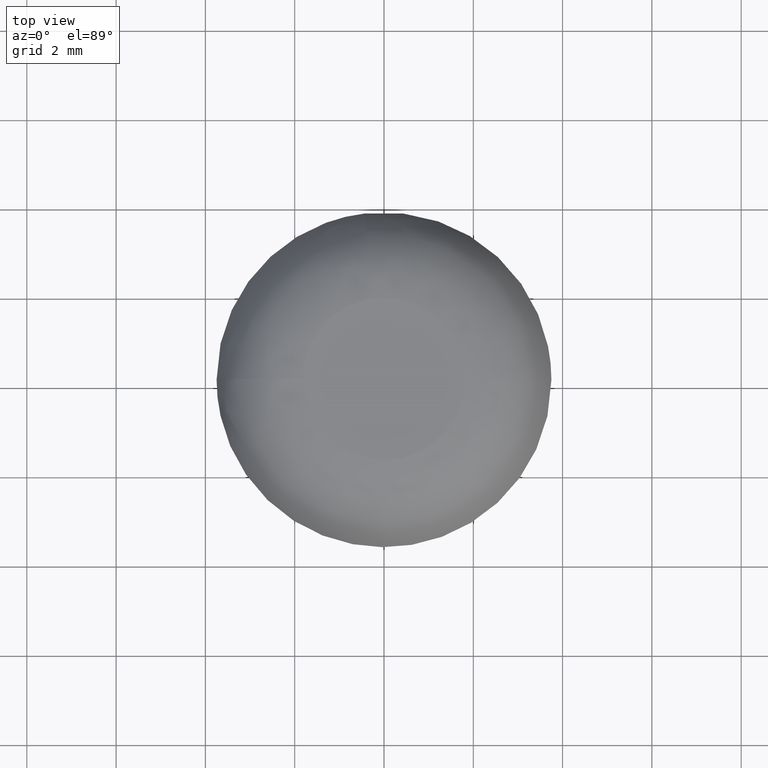
[diagram: clean part render]
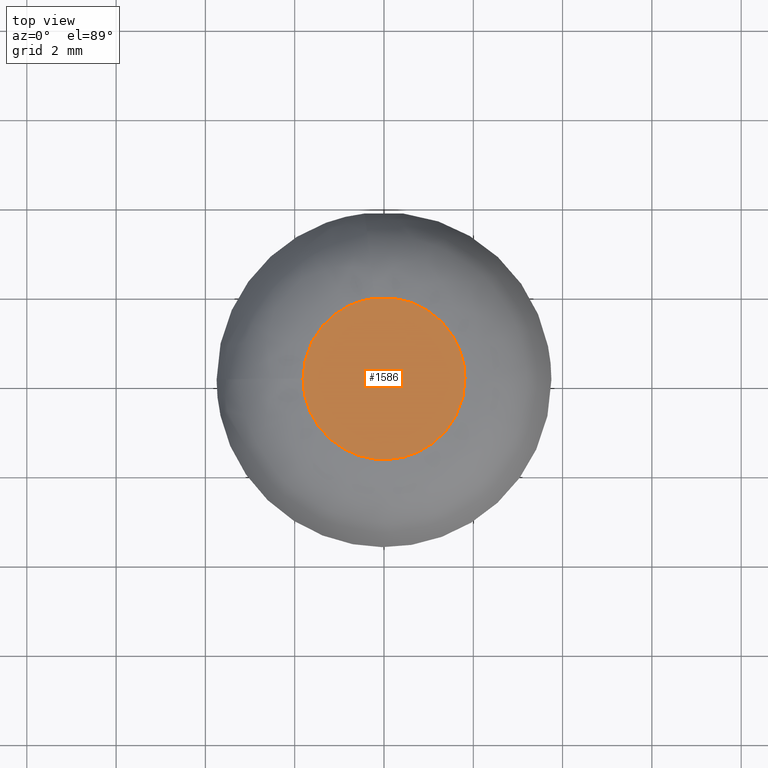
[diagram: same view with one face highlighted and labeled with its STEP entity id]
A machine part, top view. The second image highlights one B-rep face of the part: STEP entity #1586.
In plain terms, the highlighted face is a freeform B-spline surface patch.
Its self-contained STEP definition (entity closure, byte-faithful):
#266=CARTESIAN_POINT('',(-0.209395303627557,1.801378603412120,1.500000000000050));
#267=VERTEX_POINT('',#266);
#268=CARTESIAN_POINT('',(1.813508000000000,0.0,1.500000000000100));
#269=VERTEX_POINT('',#268);
#270=CARTESIAN_POINT('',(-0.209395303627557,1.801378603412120,1.500000000000050));
#271=CARTESIAN_POINT('',(-0.105048954506664,1.813508000000000,1.500000000000100));
#272=CARTESIAN_POINT('',(0.0,1.813508000000000,1.500000000000100));
#273=CARTESIAN_POINT('',(1.813508000000000,1.813508000000000,1.500000000000100));
#274=CARTESIAN_POINT('',(1.813508000000000,0.0,1.500000000000100));
#282=(BOUNDED_CURVE()B_SPLINE_CURVE(2,(#270,#271,#272,#273,#274),.UNSPECIFIED.,.F.,.U.)B_SPLINE_CURVE_WITH_KNOTS((3,2,3),(0.229999999994230,0.250000000000000,0.500000000000000),.UNSPECIFIED.)CURVE()GEOMETRIC_REPRESENTATION_ITEM()RATIONAL_B_SPLINE_CURVE((0.956886118179304,0.976568542488164,1.0,0.707106781186547,1.0))REPRESENTATION_ITEM(''));
#283=EDGE_CURVE('',#267,#269,#282,.T.);
#285=CARTESIAN_POINT('',(-1.813509538126794,0.0,1.499999999998867));
#286=VERTEX_POINT('',#285);
#287=CARTESIAN_POINT('',(1.813508000000000,0.0,1.500000000000100));
#288=CARTESIAN_POINT('',(1.813508000000000,-1.813508000000000,1.500000000000100));
#289=CARTESIAN_POINT('',(-0.000000769063397,-1.813508000000000,1.499999999999484));
#290=CARTESIAN_POINT('',(-1.813509538126794,-1.813508000000000,1.499999999998867));
#291=CARTESIAN_POINT('',(-1.813509538126794,0.0,1.499999999998867));
#299=(BOUNDED_CURVE()B_SPLINE_CURVE(2,(#287,#288,#289,#290,#291),.UNSPECIFIED.,.F.,.U.)B_SPLINE_CURVE_WITH_KNOTS((3,2,3),(0.500000000000000,0.750000000000000,1.0),.UNSPECIFIED.)CURVE()GEOMETRIC_REPRESENTATION_ITEM()RATIONAL_B_SPLINE_CURVE((1.0,0.707106781186547,1.0,0.707106781186547,1.0))REPRESENTATION_ITEM(''));
#300=EDGE_CURVE('',#269,#286,#299,.T.);
#404=CARTESIAN_POINT('',(-1.813509538126794,0.0,1.499999999998867));
#405=CARTESIAN_POINT('',(-1.813508769047213,1.614913823322519,1.499999999999458));
#406=CARTESIAN_POINT('',(-0.209395303627557,1.801378603412120,1.500000000000050));
#414=(BOUNDED_CURVE()B_SPLINE_CURVE(2,(#404,#405,#406),.UNSPECIFIED.,.F.,.U.)B_SPLINE_CURVE_WITH_KNOTS((3,3),(0.0,0.229999999994230),.UNSPECIFIED.)CURVE()GEOMETRIC_REPRESENTATION_ITEM()RATIONAL_B_SPLINE_CURVE((1.0,0.730538238698383,0.956886118179304))REPRESENTATION_ITEM(''));
#415=EDGE_CURVE('',#286,#267,#414,.T.);
#1576=CARTESIAN_POINT('',(1.994677553047415,-1.994676984583355,1.500000000000100));
#1577=CARTESIAN_POINT('',(-1.994679156030337,-1.994676984583355,1.500000000000100));
#1578=CARTESIAN_POINT('',(1.994677553047415,1.994667207022088,1.500000000000100));
#1579=CARTESIAN_POINT('',(-1.994679156030337,1.994667207022088,1.500000000000100));
#1580=B_SPLINE_SURFACE_WITH_KNOTS('',1,1,((#1576,#1578),(#1577,#1579)),.UNSPECIFIED.,.F.,.F.,.U.,(2,2),(2,2),(0.0,3.989356709077752),(0.0,3.989344191605444),.UNSPECIFIED.);
#1581=ORIENTED_EDGE('',*,*,#300,.F.);
#1582=ORIENTED_EDGE('',*,*,#283,.F.);
#1583=ORIENTED_EDGE('',*,*,#415,.F.);
#1584=EDGE_LOOP('',(#1581,#1582,#1583));
#1585=FACE_OUTER_BOUND('',#1584,.T.);
#1586=ADVANCED_FACE('',(#1585),#1580,.F.);